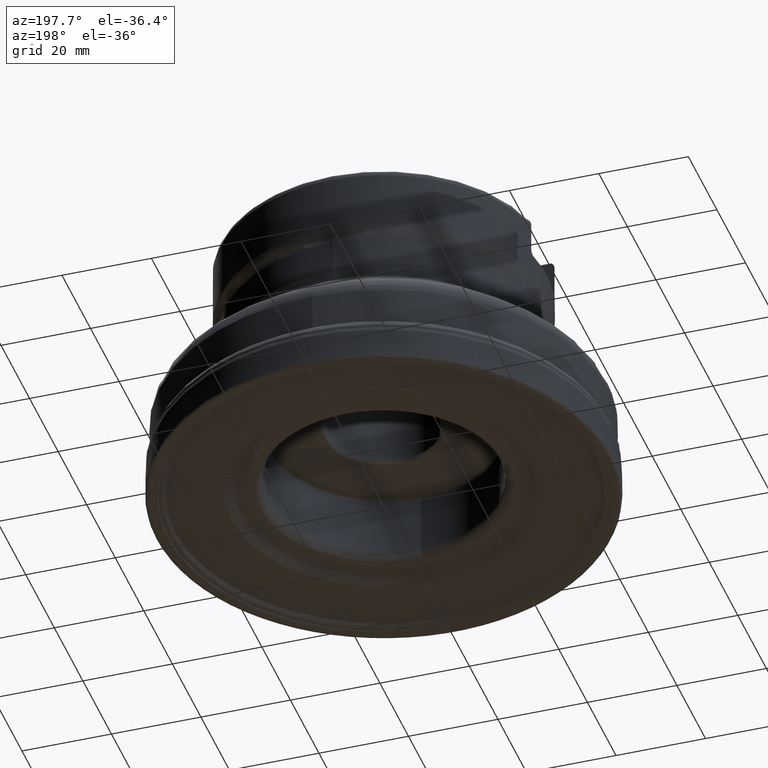
[diagram: clean part render]
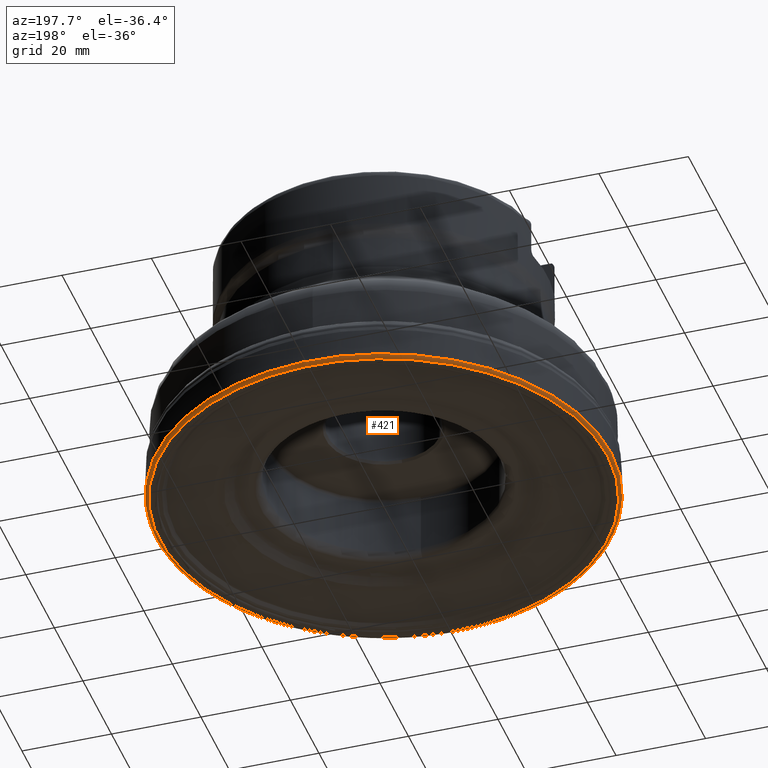
[diagram: same view with one face highlighted and labeled with its STEP entity id]
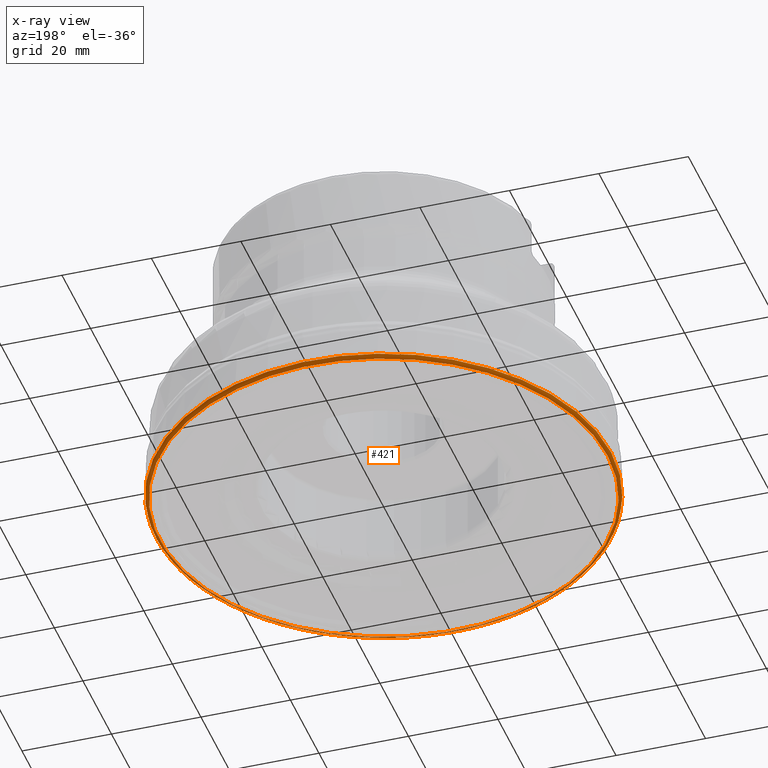
[diagram: x-ray of the same camera — body ghosted, the highlighted face saturated]
A machine part, auxiliary view. The second image highlights one B-rep face of the part: STEP entity #421.
The next image is the same camera in x-ray: the body ghosted, the highlighted face saturated — about 0% of this face is hidden behind the body in this view.
In plain terms, the highlighted face is a SurfaceOfRevolution surface.
Its self-contained STEP definition (entity closure, byte-faithful):
#116=SURFACE_OF_REVOLUTION('',#1180,#140);
#140=AXIS1_PLACEMENT('',#2372,#1571);
#244=FACE_BOUND('',#572,.T.);
#245=FACE_BOUND('',#573,.T.);
#421=ADVANCED_FACE('',(#244,#245),#116,.F.);
#572=EDGE_LOOP('',(#877));
#573=EDGE_LOOP('',(#878));
#655=CIRCLE('',#1302,50.7999999999998);
#656=CIRCLE('',#1303,50.0272938608968);
#877=ORIENTED_EDGE('',*,*,#1109,.T.);
#878=ORIENTED_EDGE('',*,*,#1110,.F.);
#990=VERTEX_POINT('',#2352);
#991=VERTEX_POINT('',#2361);
#1109=EDGE_CURVE('',#990,#990,#655,.T.);
#1110=EDGE_CURVE('',#991,#991,#656,.T.);
#1180=B_SPLINE_CURVE_WITH_KNOTS('',3,(#2362,#2363,#2364,#2365,#2366,#2367,
#2368,#2369,#2370,#2371),.UNSPECIFIED.,.F.,.F.,(4,1,1,1,1,1,1,4),(0.,0.125,
0.25,0.375,0.5,0.625,0.75,1.),.UNSPECIFIED.);
#1302=AXIS2_PLACEMENT_3D('',#2351,#1566,#1567);
#1303=AXIS2_PLACEMENT_3D('',#2360,#1569,#1570);
#1566=DIRECTION('',(0.,0.,-1.));
#1567=DIRECTION('',(-1.,0.,0.));
#1569=DIRECTION('',(0.,0.,-1.));
#1570=DIRECTION('',(-1.,0.,0.));
#1571=DIRECTION('',(0.,0.,-1.));
#2351=CARTESIAN_POINT('',(0.,0.,0.752341063463118));
#2352=CARTESIAN_POINT('',(-50.7999999999998,0.,0.752341063463118));
#2360=CARTESIAN_POINT('',(0.,0.,-2.8827126847436E-11));
#2361=CARTESIAN_POINT('',(-50.0272938608968,0.,-2.8827126847436E-11));
#2362=CARTESIAN_POINT('',(49.7015103497321,-5.69999999999997,-2.84094543056943E-11));
#2363=CARTESIAN_POINT('',(49.7521618504452,-5.70096228015411,-0.00138667051349548));
#2364=CARTESIAN_POINT('',(49.8538422980026,-5.69840282805171,0.00618060155464762));
#2365=CARTESIAN_POINT('',(50.0009791586142,-5.6867805945354,0.0471850066760396));
#2366=CARTESIAN_POINT('',(50.1367208383392,-5.67305908644161,0.11645516191531));
#2367=CARTESIAN_POINT('',(50.2564101873788,-5.65815779882621,0.210618033601866));
#2368=CARTESIAN_POINT('',(50.3553884099964,-5.64299639102707,0.326300005987473));
#2369=CARTESIAN_POINT('',(50.4553532290703,-5.6210388241807,0.502798756940287));
#2370=CARTESIAN_POINT('',(50.4893827637172,-5.60104313049838,0.652969855605559));
#2371=CARTESIAN_POINT('',(50.4926517722708,-5.57961620581377,0.752341063463118));
#2372=CARTESIAN_POINT('',(0.,0.,0.));